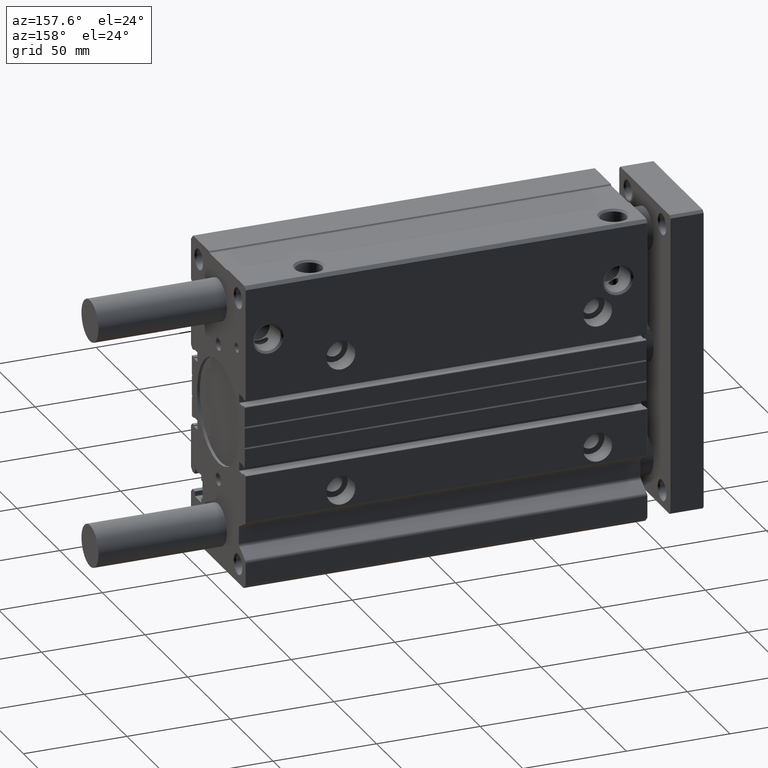
[diagram: clean part render]
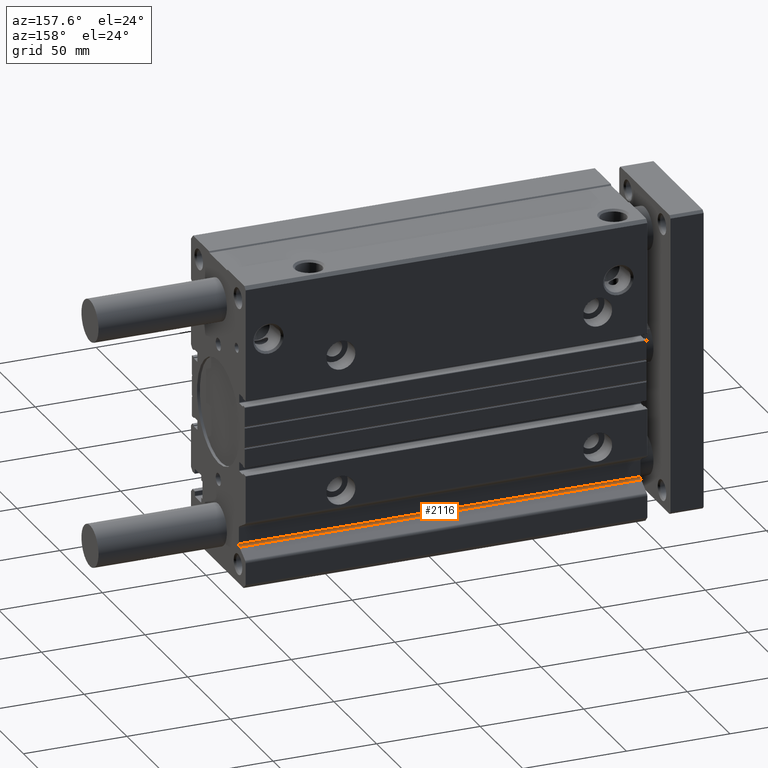
[diagram: same view with one face highlighted and labeled with its STEP entity id]
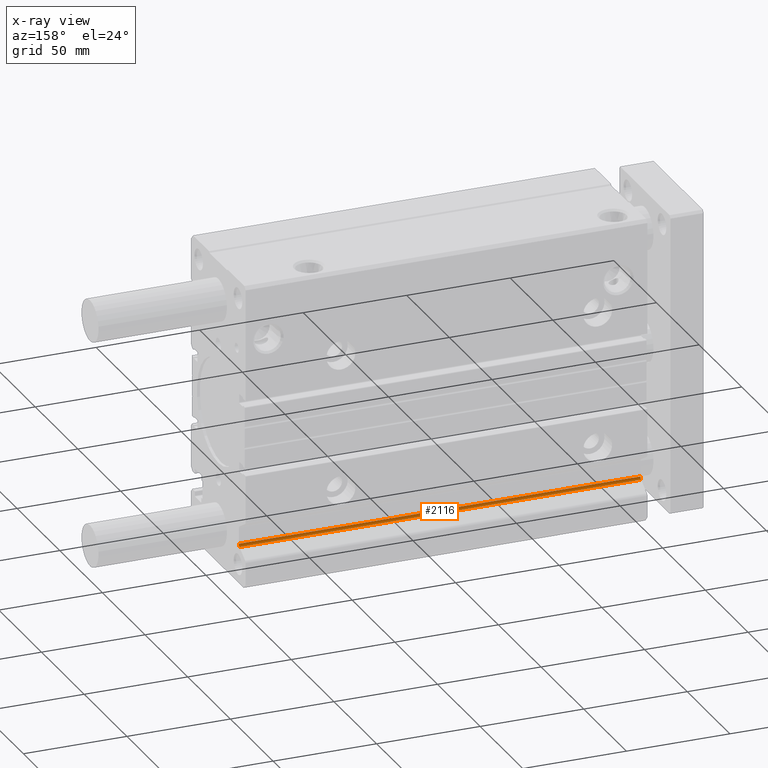
[diagram: x-ray of the same camera — body ghosted, the highlighted face saturated]
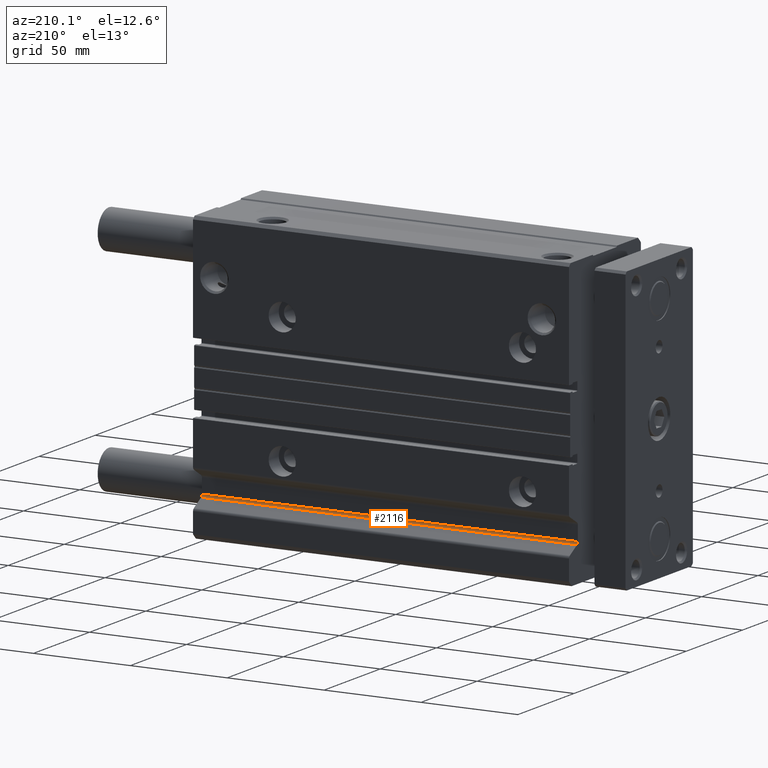
[diagram: same view with one face highlighted and labeled with its STEP entity id]
A machine part, auxiliary view. The second image highlights one B-rep face of the part: STEP entity #2116.
The next image is the same camera in x-ray: the body ghosted, the highlighted face saturated — about 0% of this face is hidden behind the body in this view.
A second angle (auxiliary view) of the same face is appended — the face is thin or edge-on in the first view.
In plain terms, the highlighted cylindrical surface (edge-blend (fillet) strip) has radius 1.5 mm, axis along (-1, -0, -0).
Its self-contained STEP definition (entity closure, byte-faithful):
#427 = AXIS2_PLACEMENT_3D ( 'NONE', #11541, #10745, #611 ) ;
#611 = DIRECTION ( 'NONE',  ( 0.000000000000000000, 0.000000000000000000, 1.000000000000000000 ) ) ;
#1315 = DIRECTION ( 'NONE',  ( 0.000000000000000000, 0.000000000000000000, 1.000000000000000000 ) ) ;
#1559 = EDGE_CURVE ( 'NONE', #11772, #6178, #11090, .T. ) ;
#1858 = AXIS2_PLACEMENT_3D ( 'NONE', #5048, #13038, #7091 ) ;
#2116 = ADVANCED_FACE ( 'NONE', ( #3309 ), #7362, .F. ) ;
#2314 = CARTESIAN_POINT ( 'NONE',  ( 0.000000000000000000, 25.49999949271130006, -54.70000055182330101 ) ) ;
#2475 = CARTESIAN_POINT ( 'NONE',  ( 194.0000000000000000, 24.00000020865000039, -54.70000027591165548 ) ) ;
#2652 = ORIENTED_EDGE ( 'NONE', *, *, #12883, .F. ) ;
#2698 = CARTESIAN_POINT ( 'NONE',  ( 0.000000000000000000, 24.75767021732015039, -56.00343643405225436 ) ) ;
#3229 = AXIS2_PLACEMENT_3D ( 'NONE', #2314, #6367, #1315 ) ;
#3309 = FACE_OUTER_BOUND ( 'NONE', #9177, .T. ) ;
#3693 = CARTESIAN_POINT ( 'NONE',  ( 194.0000000000000000, 24.75767021732015039, -56.00343643405225436 ) ) ;
#3758 = ORIENTED_EDGE ( 'NONE', *, *, #1559, .F. ) ;
#3803 = CIRCLE ( 'NONE', #1858, 1.499999284061408256 ) ;
#4514 = CARTESIAN_POINT ( 'NONE',  ( 0.000000000000000000, 24.00000020865000039, -54.70000000000000284 ) ) ;
#5048 = CARTESIAN_POINT ( 'NONE',  ( 0.000000000000000000, 25.49999949271130006, -54.70000055182330101 ) ) ;
#5501 = EDGE_CURVE ( 'NONE', #11772, #10547, #3803, .T. ) ;
#6075 = CARTESIAN_POINT ( 'NONE',  ( 0.000000000000000000, 24.75767029021089982, -56.00343647556479709 ) ) ;
#6178 = VERTEX_POINT ( 'NONE', #3693 ) ;
#6367 = DIRECTION ( 'NONE',  ( -1.000000000000000000, -0.000000000000000000, -0.000000000000000000 ) ) ;
#6941 = VECTOR ( 'NONE', #8609, 1000.000000000000000 ) ;
#7091 = DIRECTION ( 'NONE',  ( 0.000000000000000000, 0.000000000000000000, 1.000000000000000000 ) ) ;
#7362 = CYLINDRICAL_SURFACE ( 'NONE', #3229, 1.499999284061408256 ) ;
#7752 = EDGE_CURVE ( 'NONE', #6178, #10210, #10381, .T. ) ;
#8609 = DIRECTION ( 'NONE',  ( -1.000000000000000000, -0.000000000000000000, 0.000000000000000000 ) ) ;
#9148 = VECTOR ( 'NONE', #12282, 1000.000000000000000 ) ;
#9177 = EDGE_LOOP ( 'NONE', ( #3758, #10131, #2652, #12950 ) ) ;
#10131 = ORIENTED_EDGE ( 'NONE', *, *, #5501, .T. ) ;
#10210 = VERTEX_POINT ( 'NONE', #2475 ) ;
#10348 = CARTESIAN_POINT ( 'NONE',  ( 0.000000000000000000, 24.00000020865000039, -54.70000027591165548 ) ) ;
#10381 = CIRCLE ( 'NONE', #427, 1.499999284061408256 ) ;
#10547 = VERTEX_POINT ( 'NONE', #10348 ) ;
#10745 = DIRECTION ( 'NONE',  ( -1.000000000000000000, -0.000000000000000000, -0.000000000000000000 ) ) ;
#11090 = LINE ( 'NONE', #6075, #9148 ) ;
#11541 = CARTESIAN_POINT ( 'NONE',  ( 194.0000000000000000, 25.49999949271130006, -54.70000055182330101 ) ) ;
#11772 = VERTEX_POINT ( 'NONE', #2698 ) ;
#12282 = DIRECTION ( 'NONE',  ( 1.000000000000000000, 0.000000000000000000, 0.000000000000000000 ) ) ;
#12457 = LINE ( 'NONE', #4514, #6941 ) ;
#12883 = EDGE_CURVE ( 'NONE', #10210, #10547, #12457, .T. ) ;
#12950 = ORIENTED_EDGE ( 'NONE', *, *, #7752, .F. ) ;
#13038 = DIRECTION ( 'NONE',  ( -1.000000000000000000, -0.000000000000000000, -0.000000000000000000 ) ) ;